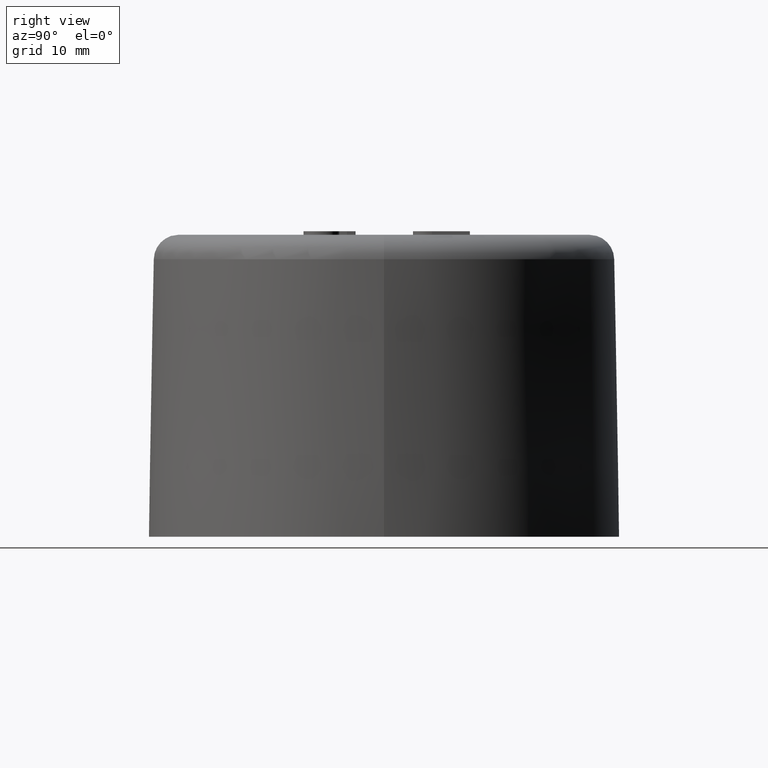
[diagram: clean part render]
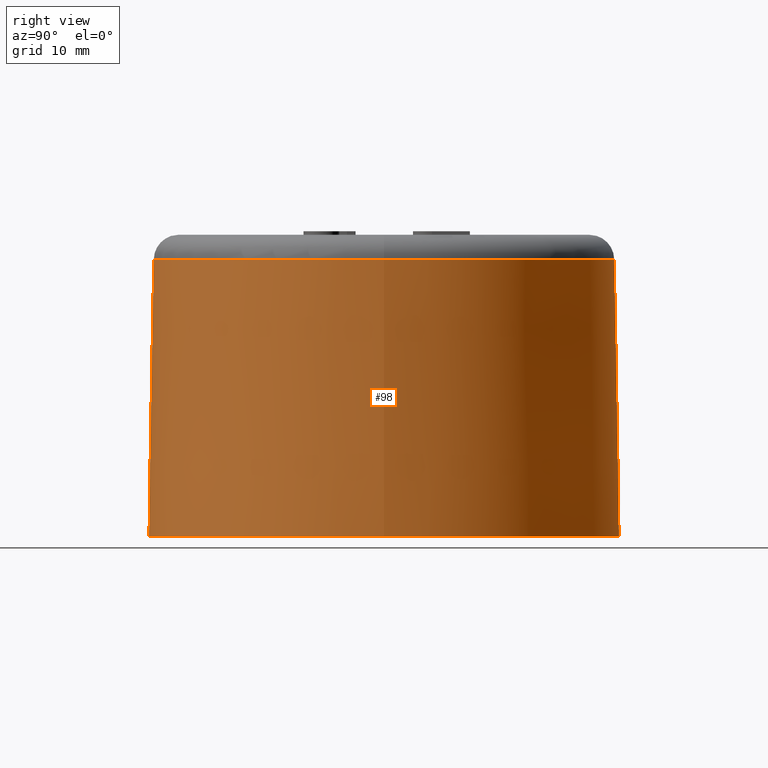
[diagram: same view with one face highlighted and labeled with its STEP entity id]
A machine part, right view. The second image highlights one B-rep face of the part: STEP entity #98.
In plain terms, the highlighted conical surface has half-angle 1 deg.
Its self-contained STEP definition (entity closure, byte-faithful):
#98 = ADVANCED_FACE( '', ( #205, #206 ), #207, .T. );
#205 = FACE_BOUND( '', #361, .T. );
#206 = FACE_OUTER_BOUND( '', #362, .T. );
#207 = CONICAL_SURFACE( '', #363, 33.0994821186741, 0.0174532925199434 );
#361 = EDGE_LOOP( '', ( #695 ) );
#362 = EDGE_LOOP( '', ( #696 ) );
#363 = AXIS2_PLACEMENT_3D( '', #697, #698, #699 );
#695 = ORIENTED_EDGE( '', *, *, #1117, .F. );
#696 = ORIENTED_EDGE( '', *, *, #1083, .T. );
#697 = CARTESIAN_POINT( '', ( 0.000000000000000, 0.000000000000000, 0.000000000000000 ) );
#698 = DIRECTION( '', ( 6.12303176911189E-017, 0.000000000000000, -1.00000000000000 ) );
#699 = DIRECTION( '', ( -1.00000000000000, 0.000000000000000, -6.12303176911189E-017 ) );
#1083 = EDGE_CURVE( '', #1272, #1272, #1273, .T. );
#1117 = EDGE_CURVE( '', #1331, #1331, #1332, .T. );
#1272 = VERTEX_POINT( '', #1646 );
#1273 = CIRCLE( '', #1647, 33.0994821186741 );
#1331 = VERTEX_POINT( '', #1884 );
#1332 = CIRCLE( '', #1885, 32.4176683713673 );
#1646 = CARTESIAN_POINT( '', ( 33.0994821186741, 0.000000000000000, 2.02669180553792E-015 ) );
#1647 = AXIS2_PLACEMENT_3D( '', #2093, #2094, #2095 );
#1884 = CARTESIAN_POINT( '', ( 32.4176683713673, 0.000000000000000, 39.0610834225305 ) );
#1885 = AXIS2_PLACEMENT_3D( '', #2120, #2121, #2122 );
#2093 = CARTESIAN_POINT( '', ( 0.000000000000000, 0.000000000000000, 0.000000000000000 ) );
#2094 = DIRECTION( '', ( -6.12303176911189E-017, 0.000000000000000, 1.00000000000000 ) );
#2095 = DIRECTION( '', ( 1.00000000000000, 0.000000000000000, 6.12303176911189E-017 ) );
#2120 = CARTESIAN_POINT( '', ( -2.39172254732084E-015, 0.000000000000000, 39.0610834225305 ) );
#2121 = DIRECTION( '', ( -6.12303176911189E-017, 0.000000000000000, 1.00000000000000 ) );
#2122 = DIRECTION( '', ( 1.00000000000000, 0.000000000000000, 6.12303176911189E-017 ) );